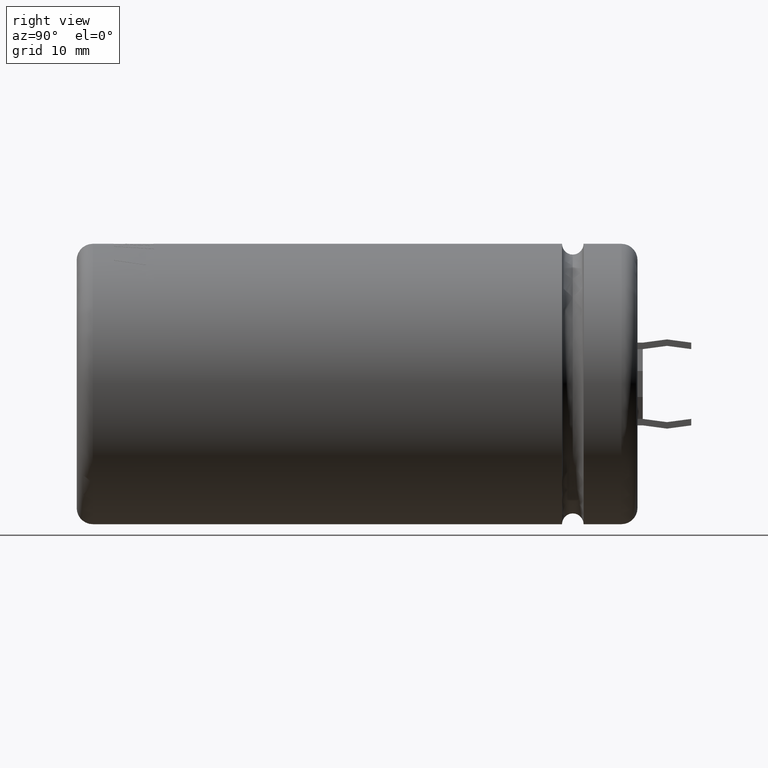
[diagram: clean part render]
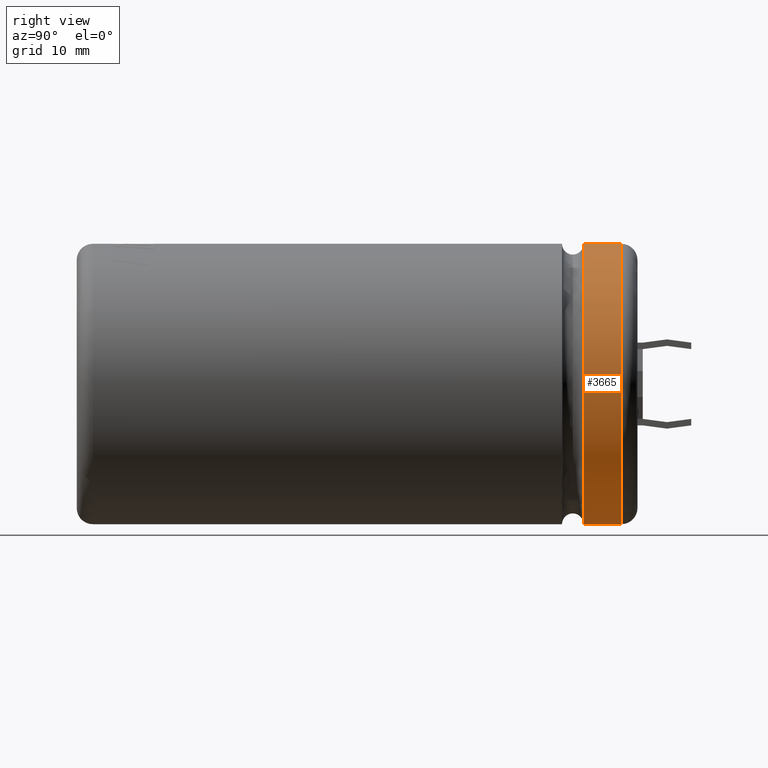
[diagram: same view with one face highlighted and labeled with its STEP entity id]
A machine part, right view. The second image highlights one B-rep face of the part: STEP entity #3665.
In plain terms, the highlighted cylindrical surface (partial cylindrical patch) has radius 13 mm, axis along (-0, -1, -0).
Its self-contained STEP definition (entity closure, byte-faithful):
#1 = LINE ( 'NONE', #4410, #3808 ) ;
#55 = EDGE_CURVE ( 'NONE', #3440, #3749, #1323, .T. ) ;
#249 = EDGE_CURVE ( 'NONE', #3440, #1266, #889, .T. ) ;
#266 = CARTESIAN_POINT ( 'NONE',  ( 0.0000000000000000000, 52.00000000000000000, -13.00000000000000200 ) ) ;
#372 = CARTESIAN_POINT ( 'NONE',  ( 1.592040838891558900E-015, 50.50239999999999400, 13.00000000000000200 ) ) ;
#554 = ORIENTED_EDGE ( 'NONE', *, *, #249, .F. ) ;
#569 = ORIENTED_EDGE ( 'NONE', *, *, #55, .T. ) ;
#583 = DIRECTION ( 'NONE',  ( -0.0000000000000000000, -1.000000000000000000, -0.0000000000000000000 ) ) ;
#884 = AXIS2_PLACEMENT_3D ( 'NONE', #999, #1742, #4324 ) ;
#889 = LINE ( 'NONE', #266, #3202 ) ;
#999 = CARTESIAN_POINT ( 'NONE',  ( 0.0000000000000000000, 52.00000000000000000, 0.0000000000000000000 ) ) ;
#1266 = VERTEX_POINT ( 'NONE', #4458 ) ;
#1323 = CIRCLE ( 'NONE', #3841, 13.00000000000000200 ) ;
#1333 = DIRECTION ( 'NONE',  ( -0.0000000000000000000, -1.000000000000000000, -0.0000000000000000000 ) ) ;
#1346 = CARTESIAN_POINT ( 'NONE',  ( 1.592040838891558900E-015, 46.99996000000000200, 13.00000000000000200 ) ) ;
#1604 = ORIENTED_EDGE ( 'NONE', *, *, #4548, .T. ) ;
#1664 = CYLINDRICAL_SURFACE ( 'NONE', #884, 13.00000000000000200 ) ;
#1672 = CARTESIAN_POINT ( 'NONE',  ( 0.0000000000000000000, 46.99996000000000200, 0.0000000000000000000 ) ) ;
#1742 = DIRECTION ( 'NONE',  ( -0.0000000000000000000, -1.000000000000000000, -0.0000000000000000000 ) ) ;
#1912 = FACE_OUTER_BOUND ( 'NONE', #3266, .T. ) ;
#2750 = DIRECTION ( 'NONE',  ( 0.0000000000000000000, 0.0000000000000000000, 1.000000000000000000 ) ) ;
#2848 = AXIS2_PLACEMENT_3D ( 'NONE', #1672, #4610, #2750 ) ;
#2954 = DIRECTION ( 'NONE',  ( -0.0000000000000000000, -1.000000000000000000, -0.0000000000000000000 ) ) ;
#3088 = DIRECTION ( 'NONE',  ( 0.0000000000000000000, 0.0000000000000000000, 1.000000000000000000 ) ) ;
#3202 = VECTOR ( 'NONE', #583, 1000.000000000000000 ) ;
#3266 = EDGE_LOOP ( 'NONE', ( #569, #1604, #3696, #554 ) ) ;
#3440 = VERTEX_POINT ( 'NONE', #3942 ) ;
#3447 = CIRCLE ( 'NONE', #2848, 13.00000000000000200 ) ;
#3665 = ADVANCED_FACE ( 'NONE', ( #1912 ), #1664, .T. ) ;
#3696 = ORIENTED_EDGE ( 'NONE', *, *, #4362, .T. ) ;
#3749 = VERTEX_POINT ( 'NONE', #372 ) ;
#3808 = VECTOR ( 'NONE', #2954, 1000.000000000000000 ) ;
#3841 = AXIS2_PLACEMENT_3D ( 'NONE', #4609, #1333, #3088 ) ;
#3942 = CARTESIAN_POINT ( 'NONE',  ( 0.0000000000000000000, 50.50239999999999400, -13.00000000000000200 ) ) ;
#4235 = VERTEX_POINT ( 'NONE', #1346 ) ;
#4324 = DIRECTION ( 'NONE',  ( 0.0000000000000000000, 0.0000000000000000000, -1.000000000000000000 ) ) ;
#4362 = EDGE_CURVE ( 'NONE', #4235, #1266, #3447, .T. ) ;
#4410 = CARTESIAN_POINT ( 'NONE',  ( 1.592040838891558900E-015, 52.00000000000000000, 13.00000000000000200 ) ) ;
#4458 = CARTESIAN_POINT ( 'NONE',  ( 0.0000000000000000000, 46.99996000000000200, -13.00000000000000200 ) ) ;
#4548 = EDGE_CURVE ( 'NONE', #3749, #4235, #1, .T. ) ;
#4609 = CARTESIAN_POINT ( 'NONE',  ( 0.0000000000000000000, 50.50239999999999400, 0.0000000000000000000 ) ) ;
#4610 = DIRECTION ( 'NONE',  ( -0.0000000000000000000, 1.000000000000000000, -0.0000000000000000000 ) ) ;